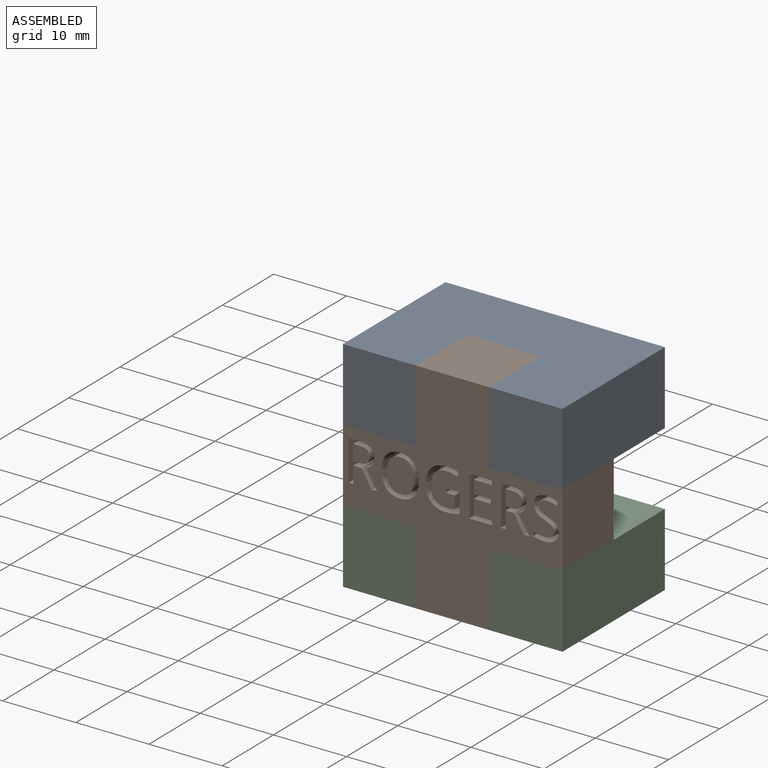
[diagram: assembled view]
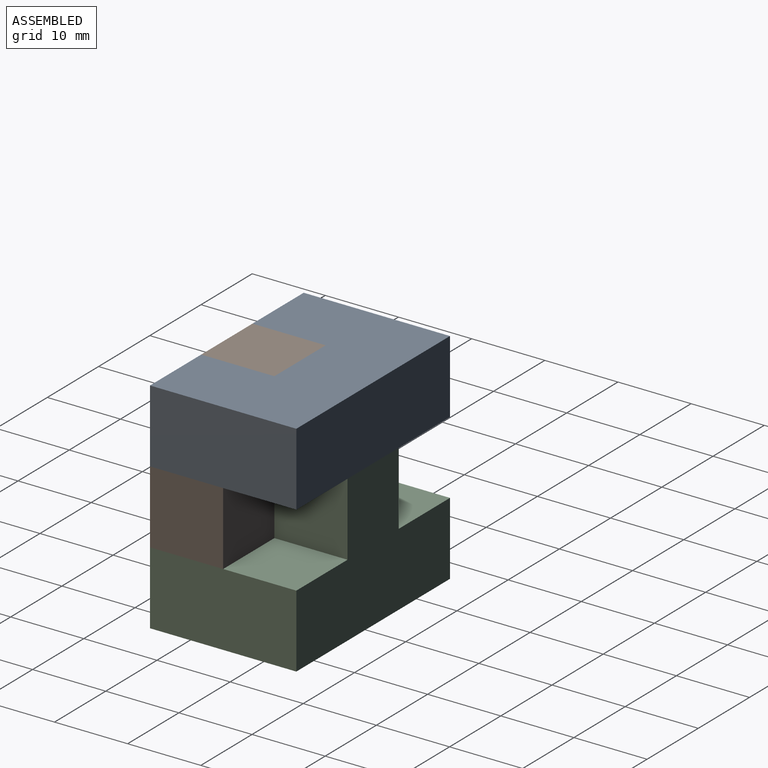
[diagram: assembled view, second angle]
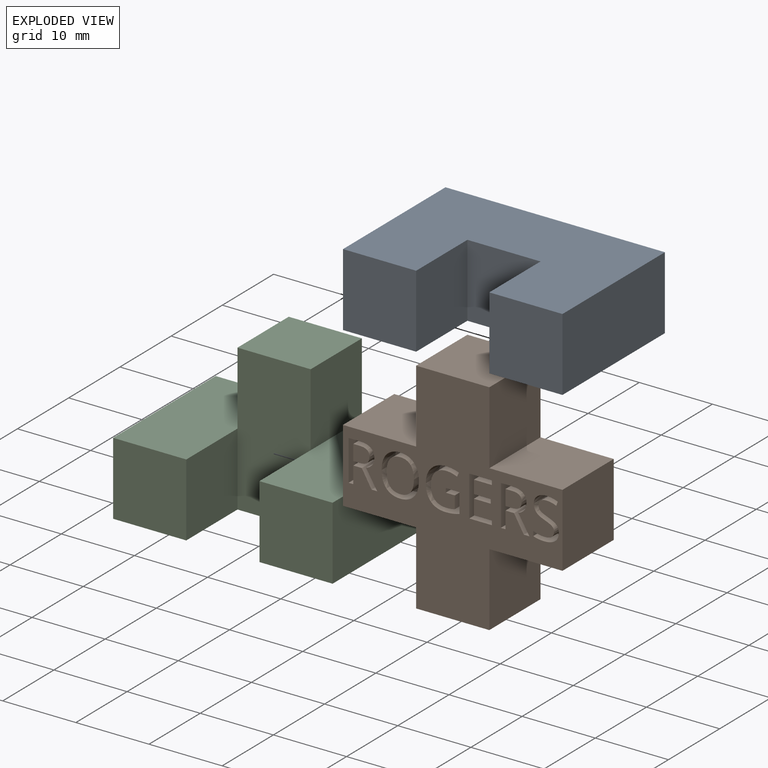
[diagram: exploded view]
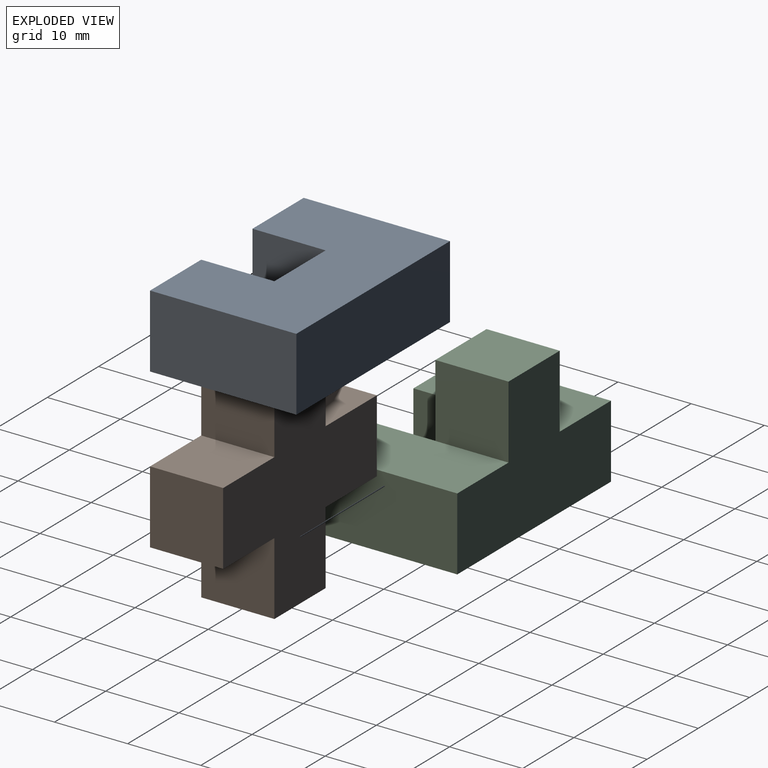
[diagram: exploded view, second angle]
ASSEMBLY  parts=3 mates=2
PART A: 10 faces, bbox 30x20x10 mm
  f0: plane 10x10mm, normal (0,-1,0), area 100mm2, adj f1,f7,f8,f9
  f1: plane 10x10mm, normal (1,0,0), area 100mm2, adj f0,f2,f8,f9
  f2: plane 10x10mm, normal (0,-1,0), area 100mm2, adj f1,f3,f8,f9
  f3: plane 10x10mm, normal (-1,0,0), area 100mm2, adj f2,f4,f8,f9
  f4: plane 10x10mm, normal (0,-1,0), area 100mm2, adj f3,f5,f8,f9
  f5: plane 20x10mm, normal (1,0,0), area 200mm2, adj f4,f6,f8,f9
  f6: plane 30x10mm, normal (0,1,0), area 300mm2, adj f5,f7,f8,f9
  f7: plane 20x10mm, normal (-1,0,0), area 200mm2, adj f0,f6,f8,f9
  f8: plane 30x20mm, normal (0,0,1), area 500mm2, adj f0,f1,f2,f3,f4,f5,f6,f7
  f9: plane 30x20mm, normal (0,0,-1), area 500mm2, adj f0,f1,f2,f3,f4,f5,f6,f7
PART B: 132 faces, bbox 30x10x30 mm
  f0: plane 30x30mm, normal (0,-1,0), area 425.2mm2, adj f1,f2,f3,f4,f5,f6,f7,f8
  f1: plane 10x10mm, normal (0,0,1), area 100mm2, adj f0,f2,f12,f13
  f2: plane 10x10mm, normal (-1,0,0), area 100mm2, adj f0,f1,f3,f13
  f3: plane 10x10mm, normal (0,0,1), area 100mm2, adj f0,f2,f4,f13
  f4: plane 10x10mm, normal (-1,0,0), area 100mm2, adj f0,f3,f5,f13
  f5: plane 10x10mm, normal (0,0,-1), area 100mm2, adj f0,f4,f6,f13
  f6: plane 10x10mm, normal (-1,0,0), area 100mm2, adj f0,f5,f7,f13
  f7: plane 10x10mm, normal (0,0,-1), area 100mm2, adj f0,f6,f8,f13
  f8: plane 10x10mm, normal (1,0,0), area 100mm2, adj f0,f7,f9,f13
  f9: plane 10x10mm, normal (0,0,-1), area 100mm2, adj f0,f8,f10,f13
  f10: plane 10x10mm, normal (1,0,0), area 100mm2, adj f0,f9,f11,f13
  f11: plane 10x10mm, normal (0,0,1), area 100mm2, adj f0,f10,f12,f13
  f12: plane 10x10mm, normal (1,0,0), area 100mm2, adj f0,f1,f11,f13
  f13: plane 30x30mm, normal (0,1,0), area 500mm2, adj f1,f2,f3,f4,f5,f6,f7,f8
  f14: plane 2.5x1.88mm, normal (0,0,-1), area 4.7mm2, adj f0,f15,f33,f34
  f15: plane 2.5x0.58mm, normal (1,0,0), area 1.4mm2, adj f0,f14,f16,f34
  f16: plane 2.5x1.24mm, normal (0,0,1), area 3.1mm2, adj f0,f15,f17,f34
  f17: plane 2.5x1.71mm, normal (1,0,0), area 4.3mm2, adj f0,f16,f18,f34
  f18: extruded ~2.5x1.13mm, area 2.8mm2, adj f0,f17,f19,f34
  f19: extruded ~2.5x1.61mm, area 4.4mm2, adj f0,f18,f20,f34
  f20: extruded ~2.5x1.7mm, area 4.6mm2, adj f0,f19,f21,f34
  f21: extruded ~2.5x1.67mm, area 4.5mm2, adj f0,f20,f22,f34
  f22: extruded ~2.5x1.58mm, area 4.4mm2, adj f0,f21,f23,f34
  f23: extruded ~2.5x1.44mm, area 3.7mm2, adj f0,f22,f24,f34
  f24: plane 2.5x0.57mm, normal (-0.92,0,0.4), area 1.6mm2, adj f0,f23,f25,f34
  f25: extruded ~2.5x1.65mm, area 4.2mm2, adj f0,f24,f26,f34
  f26: extruded ~2.5x1.53mm, area 3.9mm2, adj f0,f25,f27,f34
  f27: extruded ~2.5x1mm, area 3.6mm2, adj f0,f26,f28,f34
  f28: extruded ~2.5x1.52mm, area 3.9mm2, adj f0,f27,f29,f34
  f29: extruded ~2.5x2.1mm, area 5.7mm2, adj f0,f28,f30,f34
  f30: extruded ~2.5x1.96mm, area 5.4mm2, adj f0,f29,f31,f34
  f31: extruded ~2.5x1.05mm, area 2.6mm2, adj f0,f30,f32,f34
  f32: extruded ~2.5x0.9mm, area 2.3mm2, adj f0,f31,f33,f34
  f33: plane 2.7x2.5mm, normal (-1,0,0), area 6.7mm2, adj f0,f14,f32,f34
  f34: plane 5.7x4.61mm, normal (0,-1,0), area 9.3mm2, adj f14,f15,f16,f17,f18,f19,f20,f21
  f35: plane 2.5x0.88mm, normal (0,0,-1), area 2.2mm2, adj f36,f52,f53,f129
  f36: plane 2.5x2.12mm, normal (-1,0,0), area 5.3mm2, adj f35,f37,f53,f129
  f37: plane 2.5x0.84mm, normal (0,0,1), area 2.1mm2, adj f36,f38,f53,f129
  f38: extruded ~2.5x1.04mm, area 2.7mm2, adj f37,f39,f53,f129
  f39: extruded ~2.5x0.79mm, area 2.2mm2, adj f38,f40,f53,f129
  f40: extruded ~2.5x0.81mm, area 2.3mm2, adj f39,f52,f53,f129
  f41: plane 2.5x2.3mm, normal (-1,0,0), area 5.8mm2, adj f0,f42,f51,f53
  f42: plane 2.5x1.16mm, normal (0,0,1), area 2.9mm2, adj f0,f41,f43,f53
  f43: plane 2.5x2.3mm, normal (0.86,0,0.5), area 6.7mm2, adj f0,f42,f44,f53
  f44: plane 2.5x0.76mm, normal (0,0,1), area 1.9mm2, adj f0,f43,f45,f53
  f45: plane 2.5x2.49mm, normal (-0.86,0,-0.52), area 7.3mm2, adj f0,f44,f46,f53
  f46: extruded ~2.5x1.49mm, area 5mm2, adj f0,f45,f47,f53
  f47: extruded ~2.5x1.18mm, area 3.3mm2, adj f0,f46,f48,f53
  f48: extruded ~2.5x1.51mm, area 4mm2, adj f0,f47,f49,f53
  f49: plane 2.5x1.52mm, normal (0,0,-1), area 3.8mm2, adj f0,f48,f50,f53
  f50: plane 5.54x2.5mm, normal (1,0,0), area 13.9mm2, adj f0,f49,f51,f53
  f51: plane 2.5x0.64mm, normal (0,0,1), area 1.6mm2, adj f0,f41,f50,f53
  f52: extruded ~2.5x1mm, area 2.6mm2, adj f35,f40,f53,f129
  f53: plane 5.54x3.9mm, normal (0,-1,0), area 9.2mm2, adj f35,f36,f37,f38,f39,f40,f41,f42
  f54: extruded ~2.5x1.71mm, area 4.5mm2, adj f55,f69,f70,f130
  f55: extruded ~2.5x1.69mm, area 4.5mm2, adj f54,f56,f70,f130
  f56: extruded ~2.5x1.4mm, area 3.9mm2, adj f55,f57,f70,f130
  f57: extruded ~2.5x1.39mm, area 3.9mm2, adj f56,f58,f70,f130
  f58: extruded ~2.5x1.7mm, area 4.5mm2, adj f57,f59,f70,f130
  f59: extruded ~2.5x1.71mm, area 4.5mm2, adj f58,f60,f70,f130
  f60: extruded ~2.5x1.39mm, area 3.9mm2, adj f59,f69,f70,f130
  f61: extruded ~2.5x2.09mm, area 5.6mm2, adj f0,f62,f68,f70
  f62: extruded ~2.5x2.09mm, area 5.6mm2, adj f0,f61,f63,f70
  f63: extruded ~2.5x1.87mm, area 5.2mm2, adj f0,f62,f64,f70
  f64: extruded ~2.5x1.89mm, area 5.3mm2, adj f0,f63,f65,f70
  f65: extruded ~2.5x2.1mm, area 5.6mm2, adj f0,f64,f66,f70
  f66: extruded ~2.5x2.11mm, area 5.7mm2, adj f0,f65,f67,f70
  f67: extruded ~2.5x1.89mm, area 5.2mm2, adj f0,f66,f68,f70
  f68: extruded ~2.5x1.87mm, area 5.2mm2, adj f0,f61,f67,f70
  f69: extruded ~2.5x1.39mm, area 3.9mm2, adj f54,f60,f70,f130
  f70: plane 5.71x5.1mm, normal (0,-1,0), area 9.7mm2, adj f54,f55,f56,f57,f58,f59,f60,f61
  f71: plane 2.5x0.88mm, normal (0,0,-1), area 2.2mm2, adj f72,f88,f89,f131
  f72: plane 2.5x2.12mm, normal (-1,0,0), area 5.3mm2, adj f71,f73,f89,f131
  f73: plane 2.5x0.84mm, normal (0,0,1), area 2.1mm2, adj f72,f74,f89,f131
  f74: extruded ~2.5x1.04mm, area 2.7mm2, adj f73,f75,f89,f131
  f75: extruded ~2.5x0.79mm, area 2.2mm2, adj f74,f76,f89,f131
  f76: extruded ~2.5x0.81mm, area 2.3mm2, adj f75,f88,f89,f131
  f77: plane 2.5x2.3mm, normal (-1,0,0), area 5.8mm2, adj f0,f78,f87,f89
  f78: plane 2.5x1.16mm, normal (0,0,1), area 2.9mm2, adj f0,f77,f79,f89
  f79: plane 2.5x2.3mm, normal (0.86,0,0.5), area 6.7mm2, adj f0,f78,f80,f89
  f80: plane 2.5x0.76mm, normal (0,0,1), area 1.9mm2, adj f0,f79,f81,f89
  f81: plane 2.5x2.49mm, normal (-0.86,0,-0.52), area 7.3mm2, adj f0,f80,f82,f89
  f82: extruded ~2.5x1.49mm, area 5mm2, adj f0,f81,f83,f89
  f83: extruded ~2.5x1.18mm, area 3.3mm2, adj f0,f82,f84,f89
  f84: extruded ~2.5x1.51mm, area 4mm2, adj f0,f83,f85,f89
  f85: plane 2.5x1.52mm, normal (0,0,-1), area 3.8mm2, adj f0,f84,f86,f89
  f86: plane 5.54x2.5mm, normal (1,0,0), area 13.9mm2, adj f0,f85,f87,f89
  f87: plane 2.5x0.64mm, normal (0,0,1), area 1.6mm2, adj f0,f77,f86,f89
  f88: extruded ~2.5x1mm, area 2.6mm2, adj f71,f76,f89,f131
  f89: plane 5.54x3.9mm, normal (0,-1,0), area 9.2mm2, adj f71,f72,f73,f74,f75,f76,f77,f78
  f90: extruded ~2.5x1.14mm, area 3.3mm2, adj f0,f91,f114,f115
  f91: extruded ~2.5x0.92mm, area 2.5mm2, adj f0,f90,f92,f115
  f92: extruded ~2.5x1.2mm, area 3.5mm2, adj f0,f91,f93,f115
  f93: extruded ~2.5x0.77mm, area 2.1mm2, adj f0,f92,f94,f115
  f94: extruded ~2.5x0.36mm, area 1.2mm2, adj f0,f93,f95,f115
  f95: extruded ~2.5x0.47mm, area 1.2mm2, adj f0,f94,f96,f115
  f96: extruded ~2.5x0.61mm, area 1.8mm2, adj f0,f95,f97,f115
  f97: extruded ~2.5x0.8mm, area 2.1mm2, adj f0,f96,f98,f115
  f98: extruded ~2.5x1.33mm, area 3.4mm2, adj f0,f97,f99,f115
  f99: plane 2.5x0.56mm, normal (-0.94,0,0.34), area 1.5mm2, adj f0,f98,f100,f115
  f100: extruded ~2.5x1.52mm, area 3.9mm2, adj f0,f99,f101,f115
  f101: extruded ~2.5x1.27mm, area 3.4mm2, adj f0,f100,f102,f115
  f102: extruded ~2.5x1.02mm, area 2.9mm2, adj f0,f101,f103,f115
  f103: extruded ~2.5x0.99mm, area 2.7mm2, adj f0,f102,f104,f115
  f104: extruded ~2.5x1.1mm, area 3.2mm2, adj f0,f103,f105,f115
  f105: extruded ~2.5x0.82mm, area 2.2mm2, adj f0,f104,f106,f115
  f106: extruded ~2.5x0.39mm, area 1.3mm2, adj f0,f105,f107,f115
  f107: extruded ~2.5x0.47mm, area 1.2mm2, adj f0,f106,f108,f115
  f108: extruded ~2.5x0.68mm, area 2mm2, adj f0,f107,f109,f115
  f109: extruded ~2.5x0.97mm, area 2.5mm2, adj f0,f108,f110,f115
  f110: extruded ~2.5x0.8mm, area 2mm2, adj f0,f109,f111,f115
  f111: extruded ~2.5x0.74mm, area 1.9mm2, adj f0,f110,f112,f115
  f112: plane 2.5x0.62mm, normal (1,0,0), area 1.6mm2, adj f0,f111,f113,f115
  f113: extruded ~2.5x1.52mm, area 3.9mm2, adj f0,f112,f114,f115
  f114: extruded ~2.5x1.44mm, area 3.8mm2, adj f0,f90,f113,f115
  f115: plane 5.7x3.49mm, normal (0,-1,0), area 7.1mm2, adj f90,f91,f92,f93,f94,f95,f96,f97
  f116: plane 3.09x2.5mm, normal (0,0,1), area 7.7mm2, adj f0,f117,f127,f128
  f117: plane 2.5x0.58mm, normal (-1,0,0), area 1.4mm2, adj f0,f116,f118,f128
  f118: plane 2.5x2.45mm, normal (0,0,-1), area 6.1mm2, adj f0,f117,f119,f128
  f119: plane 2.5x2.04mm, normal (-1,0,0), area 5.1mm2, adj f0,f118,f120,f128
  f120: plane 2.5x2.3mm, normal (0,0,1), area 5.7mm2, adj f0,f119,f121,f128
  f121: plane 2.5x0.57mm, normal (-1,0,0), area 1.4mm2, adj f0,f120,f122,f128
  f122: plane 2.5x2.3mm, normal (0,0,-1), area 5.7mm2, adj f0,f121,f123,f128
  f123: plane 2.5x1.79mm, normal (-1,0,0), area 4.5mm2, adj f0,f122,f124,f128
  f124: plane 2.5x2.45mm, normal (0,0,1), area 6.1mm2, adj f0,f123,f125,f128
  f125: plane 2.5x0.57mm, normal (-1,0,0), area 1.4mm2, adj f0,f124,f126,f128
  f126: plane 3.09x2.5mm, normal (0,0,-1), area 7.7mm2, adj f0,f125,f127,f128
  f127: plane 5.54x2.5mm, normal (1,0,0), area 13.9mm2, adj f0,f116,f126,f128
  f128: plane 5.54x3.09mm, normal (0,-1,0), area 7.7mm2, adj f116,f117,f118,f119,f120,f121,f122,f123
  f129: plane 2.2x2.12mm, normal (0,-1,0), area 4.2mm2, adj f35,f36,f37,f38,f39,f40,f52
  f130: plane 4.56x3.73mm, normal (0,-1,0), area 14.1mm2, adj f54,f55,f56,f57,f58,f59,f60,f69
  f131: plane 2.2x2.12mm, normal (0,-1,0), area 4.2mm2, adj f71,f72,f73,f74,f75,f76,f88
PART C: 14 faces, bbox 30x20x20 mm
  f0: plane 20x10mm, normal (0,-1,0), area 200mm2, adj f3,f4,f5,f8,f10,f12
  f1: plane 20x10mm, normal (1,0,0), area 200mm2, adj f2,f8,f9,f11
  f2: plane 20x10mm, normal (0,0,1), area 200mm2, adj f1,f3,f9,f10,f11
  f3: plane 10x10mm, normal (1,0,0), area 100mm2, adj f0,f2,f4,f9
  f4: plane 10x10mm, normal (0,0,1), area 100mm2, adj f0,f3,f5,f9
  f5: plane 10x10mm, normal (-1,0,0), area 100mm2, adj f0,f4,f6,f9
  f6: plane 20x10mm, normal (0,0,1), area 200mm2, adj f5,f7,f9,f12,f13
  f7: plane 20x10mm, normal (-1,0,0), area 200mm2, adj f6,f8,f9,f13
  f8: plane 30x20mm, normal (0,0,-1), area 500mm2, adj f0,f1,f7,f9,f10,f11,f12,f13
  f9: plane 30x20mm, normal (0,1,0), area 400mm2, adj f1,f2,f3,f4,f5,f6,f7,f8
  f10: plane 10x10mm, normal (-1,0,0), area 100mm2, adj f0,f2,f8,f11
  f11: plane 10x10mm, normal (0,-1,0), area 100mm2, adj f1,f2,f8,f10
  f12: plane 10x10mm, normal (1,0,0), area 100mm2, adj f0,f6,f8,f13
  f13: plane 10x10mm, normal (0,-1,0), area 100mm2, adj f6,f7,f8,f12
PLACE A t=(2.47,7.52,21.08)mm
PLACE B t=(1.65,5.38,-8.49)mm
PLACE C t=(-31.14,15.38,-5.62)mm
MATE fastened A.f9 <-> B.f11  axis (0,0,-1) through (-5.25,-4.62,21.08)mm
MATE fastened C.f3 <-> B.f8  axis (1,0,0) through (-15.25,5.38,11.08)mm
